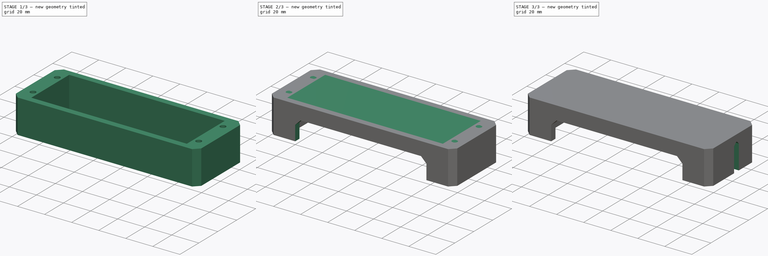
[diagram: build sequence overview — one tinted view per stage of 3, left to right]
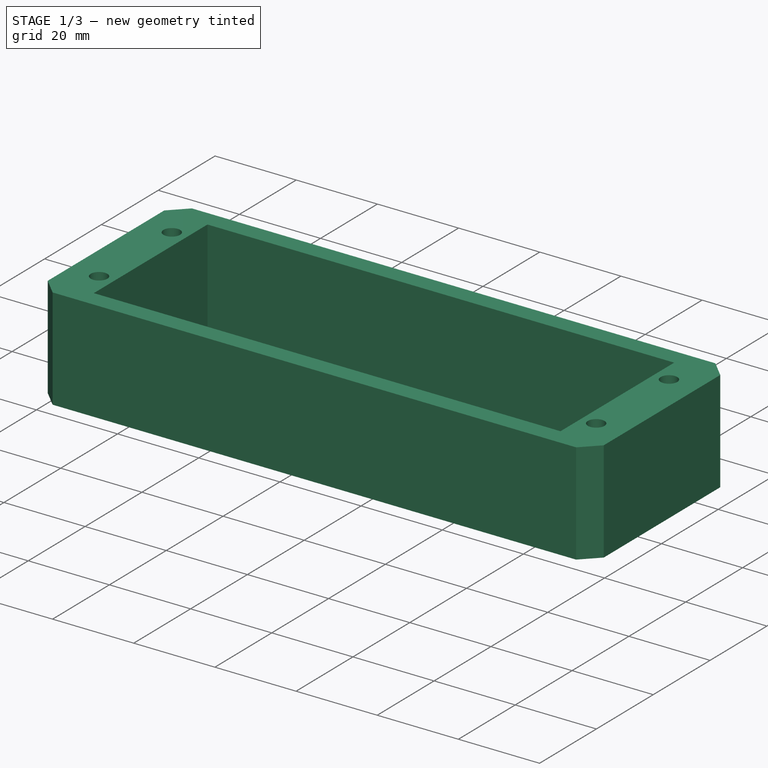
[diagram: stage 1 of 3 — iso view after this stage's code; geometry added in this stage tinted green]
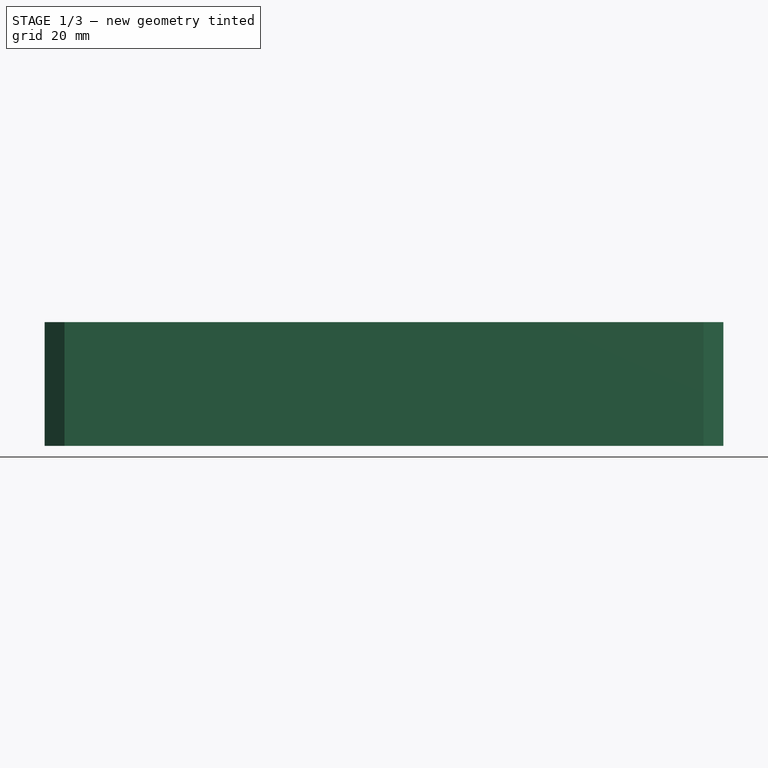
[diagram: stage 1 of 3 — front view after this stage's code; geometry added in this stage tinted green]
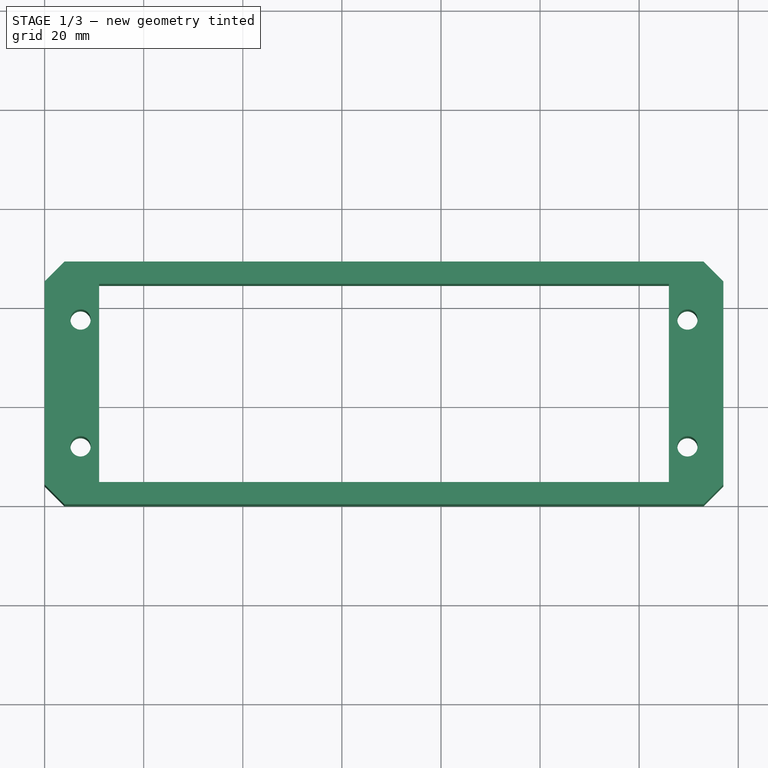
[diagram: stage 1 of 3 — top view after this stage's code; geometry added in this stage tinted green]
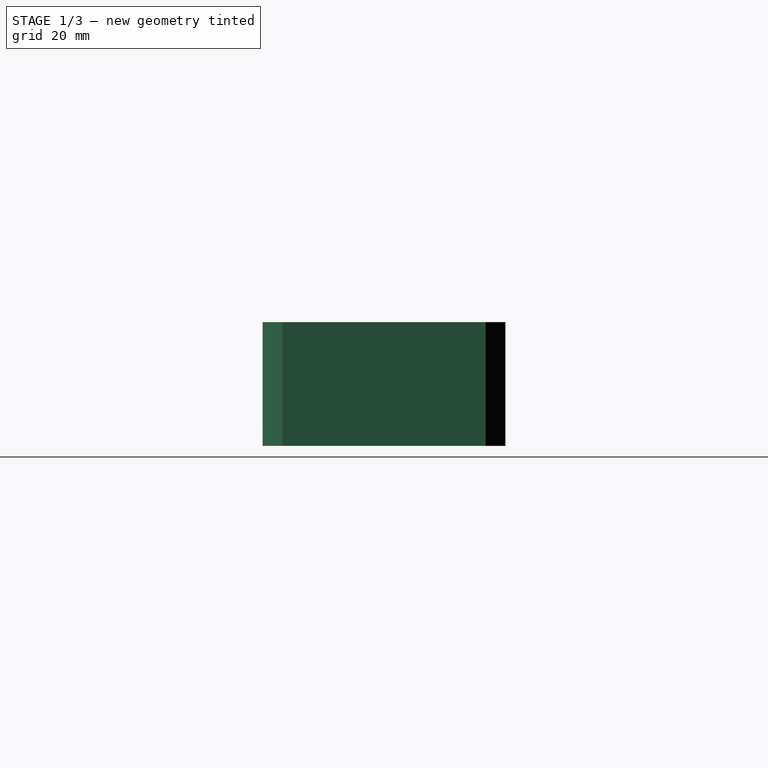
[diagram: stage 1 of 3 — right view after this stage's code; geometry added in this stage tinted green]
FCSTD DOCUMENT  (FreeCAD 0.20R29410 (Git))
Label: backup-modular-ii-cablecage
License: All rights reserved
LicenseURL: http://en.wikipedia.org/wiki/All_rights_reserved
objects: Sketcher::SketchObject×5, PartDesign::Pocket×3, PartDesign::Pad×2, PartDesign::Chamfer×2, PartDesign::Plane×1, PartDesign::Body×1
note: 21 computed .brp shape members not serialized (recipe doc carries the construction recipe); baked Part::Feature solids carry a one-line shape summary decoded from their .brp

FEATURE [Sketcher::SketchObject] Sketch
  FullyConstrained = true
  MapMode = 5
  Support = -> [XY_Plane]
  sketch-geometry (23):
    g0: LineSegment StartX=4 StartY=4 StartZ=0 EndX=133 EndY=4 EndZ=0
    g1: LineSegment StartX=133 StartY=4 StartZ=0 EndX=133 EndY=45 EndZ=0
    g2: LineSegment StartX=133 StartY=45 StartZ=0 EndX=4 EndY=45 EndZ=0
    g3: LineSegment StartX=4 StartY=45 StartZ=0 EndX=4 EndY=4 EndZ=0
    g4: LineSegment StartX=0 StartY=0 StartZ=0 EndX=137 EndY=0 EndZ=0
    g5: LineSegment StartX=137 StartY=0 StartZ=0 EndX=137 EndY=49 EndZ=0
    g6: LineSegment StartX=137 StartY=49 StartZ=0 EndX=0 EndY=49 EndZ=0
    g7: LineSegment StartX=0 StartY=49 StartZ=0 EndX=0 EndY=0 EndZ=0
    g8: LineSegment StartX=7.25 StartY=45 StartZ=0 EndX=7.25 EndY=4 EndZ=0
    g9: LineSegment StartX=129.75 StartY=4 StartZ=0 EndX=129.75 EndY=45 EndZ=0
    g10: Circle CenterX=7.25 CenterY=11.7 CenterZ=0 NormalX=0 NormalY=0 NormalZ=1 AngleXU=0 Radius=2.05
    g11: Circle CenterX=129.75 CenterY=11.7 CenterZ=0 NormalX=0 NormalY=0 NormalZ=1 AngleXU=0 Radius=2.05
    g12: Circle CenterX=7.25 CenterY=32.02 CenterZ=0 NormalX=0 NormalY=0 NormalZ=1 AngleXU=0 Radius=2.05
    g13: Circle CenterX=129.75 CenterY=32.02 CenterZ=0 NormalX=0 NormalY=0 NormalZ=1 AngleXU=0 Radius=2.05
    g14: Circle CenterX=7.25 CenterY=37.3 CenterZ=0 NormalX=0 NormalY=0 NormalZ=1 AngleXU=0 Radius=2.05
    g15: Circle CenterX=129.75 CenterY=37.3 CenterZ=0 NormalX=0 NormalY=0 NormalZ=1 AngleXU=0 Radius=2.05
    g16: LineSegment StartX=11 StartY=44.5 StartZ=0 EndX=126 EndY=44.5 EndZ=0
    g17: LineSegment StartX=126 StartY=44.5 StartZ=0 EndX=126 EndY=4.5 EndZ=0
    g18: LineSegment StartX=126 StartY=4.5 StartZ=0 EndX=11 EndY=4.5 EndZ=0
    g19: LineSegment StartX=11 StartY=4.5 StartZ=0 EndX=11 EndY=44.5 EndZ=0
    g20: LineSegment StartX=7.25 StartY=11.7 StartZ=0 EndX=129.75 EndY=11.7 EndZ=0
    g21: LineSegment StartX=7.25 StartY=32.02 StartZ=0 EndX=129.75 EndY=32.02 EndZ=0
    g22: LineSegment StartX=129.75 StartY=37.3 StartZ=0 EndX=7.25 EndY=37.3 EndZ=0
  constraints (67):
    c: Coincident(g0,g1)
    c: Coincident(g1,g2)
    c: Coincident(g2,g3)
    c: Coincident(g3,g0)
    c: Horizontal(g0)
    c: Horizontal(g2)
    c: Vertical(g1)
    c: Vertical(g3)
    c: Distance(g0) = 129
    c: Distance(g3) = 41
    c: DistanceX(g0) = 4
    c: DistanceY(g0) = 4
    c: Coincident(g4,g5)
    c: Coincident(g5,g6)
    c: Coincident(g6,g7)
    c: Coincident(g7,g4)
    c: Horizontal(g4)
    c: Horizontal(g6)
    c: Vertical(g5)
    c: Vertical(g7)
    c: Coincident(g4,g-1)
    c: Distance(g0,g5) = 4
    c: Distance(g2,g6) = 4
    c: PointOnObject(g8,g2)
    c: PointOnObject(g8,g0)
    c: Vertical(g8)
    c: PointOnObject(g9,g0)
    c: Vertical(g9)
    c: PointOnObject(g9,g2)
    c: Distance(g9,g1) = 3.25
    c: Distance(g8,g3) = 3.25
    c: PointOnObject(g10,g8)
    c: PointOnObject(g11,g9)
    c: PointOnObject(g12,g8)
    c: PointOnObject(g13,g9)
    c: PointOnObject(g14,g8)
    c: PointOnObject(g15,g9)
    c: Equal(g10,g12)
    c: Equal(g12,g14)
    c: Equal(g14,g11)
    c: Equal(g11,g13)
    c: Equal(g13,g15)
    c: Coincident(g16,g17)
    c: Coincident(g17,g18)
    c: Coincident(g18,g19)
    c: Coincident(g19,g16)
    c: Horizontal(g16)
    c: Horizontal(g18)
    c: Vertical(g17)
    c: Vertical(g19)
    c: Distance(g16,g2) = 0.5
    c: Distance(g18,g0) = 0.5
    c: Distance(g16,g3) = 7
    c: Distance(g16,g1) = 7
    c: Distance(g10,g0) = 7.7
    c: Coincident(g20,g10)
    c: Coincident(g20,g11)
    c: Horizontal(g20)
    c: Diameter(g10) = 4.1
    c: Coincident(g21,g12)
    c: Coincident(g21,g13)
    c: Horizontal(g21)
    c: Coincident(g22,g15)
    c: Coincident(g22,g14)
    c: Horizontal(g22)
    c: Distance(g12,g20) = 20.32
    c: Distance(g14,g2) = 7.7
FEATURE [PartDesign::Pad] Pad
  Direction = (0,0,1)
  Length = 25
  Length2 = 10
  Profile = -> Sketch
  ReferenceAxis = -> Sketch [N_Axis]
  Reversed = true
  Type = 0
FEATURE [Sketcher::SketchObject] Sketch002
  FullyConstrained = false
  MapMode = 5
  Placement = pos=(0,0,0) rot=(1,0,0;1.5708rad)
  Support = -> [XZ_Plane]
  sketch-geometry (13):
    g0: LineSegment StartX=20 StartY=0 StartZ=0 EndX=117 EndY=0 EndZ=0
    g1: LineSegment StartX=24 StartY=-10 StartZ=0 EndX=20 EndY=-10 EndZ=0
    g2: LineSegment StartX=20 StartY=-10 StartZ=0 EndX=20 EndY=-14 EndZ=0
    g3: LineSegment StartX=20 StartY=-14 StartZ=0 EndX=20 EndY=0 EndZ=0
    g4: LineSegment StartX=117 StartY=-10 StartZ=0 EndX=113 EndY=-10 EndZ=0
    g5: LineSegment StartX=113 StartY=-10 StartZ=0 EndX=24 EndY=-10 EndZ=0
    g6: LineSegment StartX=117 StartY=0 StartZ=0 EndX=117 EndY=-14 EndZ=0
    g7: LineSegment StartX=117 StartY=-14 StartZ=0 EndX=117 EndY=-10 EndZ=0
    g8: LineSegment StartX=20 StartY=-14 StartZ=0 EndX=24 EndY=-10 EndZ=0
    g9: LineSegment StartX=113 StartY=-10 StartZ=0 EndX=117 EndY=-14 EndZ=0
    g10: LineSegment StartX=20 StartY=-147.796 StartZ=0 EndX=117 EndY=-147.796 EndZ=0
    g11: LineSegment StartX=20 StartY=-14 StartZ=0 EndX=20 EndY=-147.796 EndZ=0
    g12: LineSegment StartX=117 StartY=-14 StartZ=0 EndX=117 EndY=-147.796 EndZ=0
  constraints (35):
    c: Coincident(g0,g6)
    c: Coincident(g7,g4)
    c: Coincident(g1,g2)
    c: Coincident(g3,g0)
    c: Horizontal(g0)
    c: PointOnObject(g0,g-1)
    c: Distance(g0) = 97
    c: Coincident(g5,g1)
    c: Horizontal(g1)
    c: Coincident(g2,g3)
    c: Vertical(g2)
    c: Vertical(g3)
    c: Distance(g-1,g3) = 20
    c: Coincident(g4,g5)
    c: Horizontal(g4)
    c: Horizontal(g5)
    c: Coincident(g6,g7)
    c: Vertical(g6)
    c: Vertical(g7)
    c: Coincident(g8,g3)
    c: Coincident(g8,g5)
    c: Coincident(g9,g5)
    c: Coincident(g9,g6)
    c: Horizontal(g10)
    c: Equal(g7,g4)
    c: Equal(g2,g1)
    c: Equal(g1,g4)
    c: Distance(g1) = 4
    c: Coincident(g11,g8)
    c: Coincident(g11,g10)
    c: Coincident(g12,g9)
    c: Coincident(g12,g10)
    c: Vertical(g12)
    c: Vertical(g11)
    c: DistanceY(g-1,g5) = -10
FEATURE [PartDesign::Chamfer] Chamfer
  Angle = 45
  Base = -> Pad [Edge5,Edge2,Edge8,Edge1]
  BaseFeature = -> Pad
  ChamferType = 0
  FlipDirection = false
  Size = 4
  Size2 = 1
  SupportTransform = false
  UseAllEdges = false
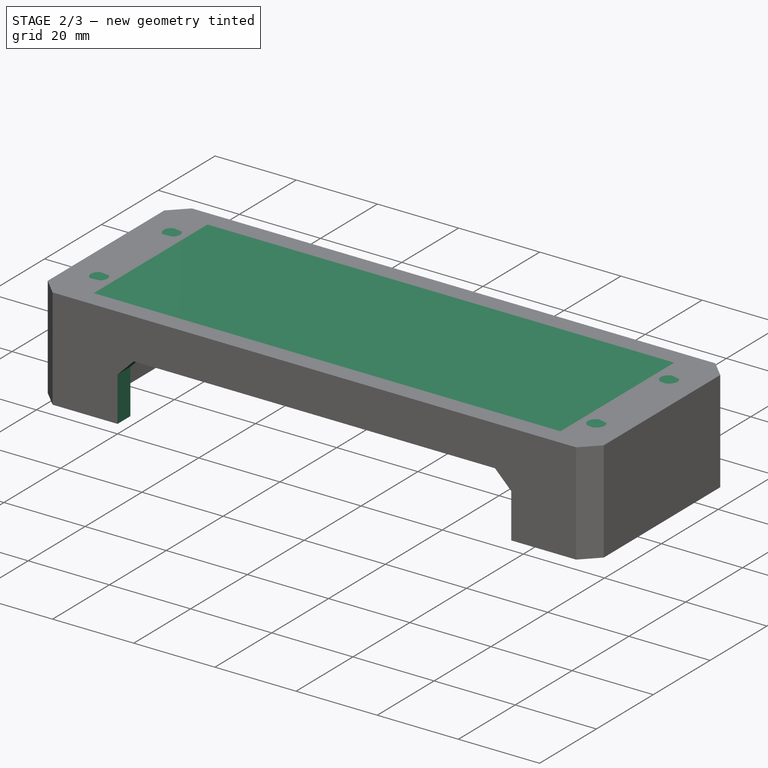
[diagram: stage 2 of 3 — iso view after this stage's code; geometry added in this stage tinted green]
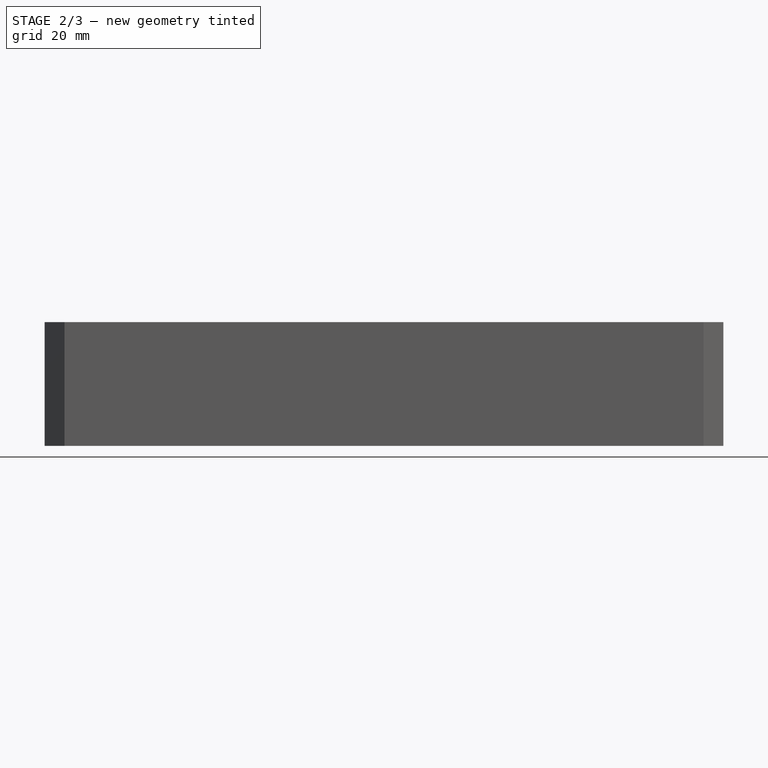
[diagram: stage 2 of 3 — front view after this stage's code; geometry added in this stage tinted green]
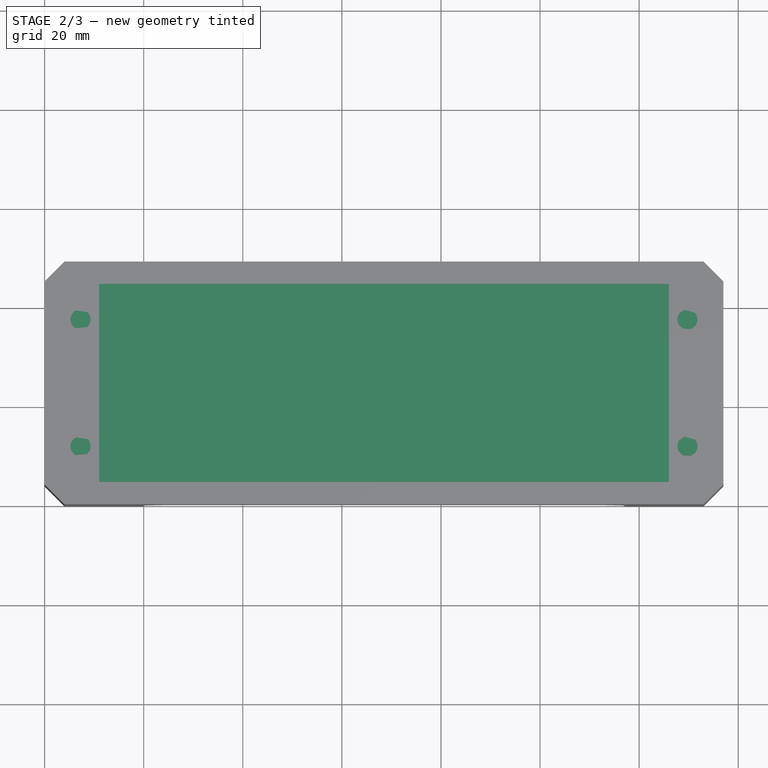
[diagram: stage 2 of 3 — top view after this stage's code; geometry added in this stage tinted green]
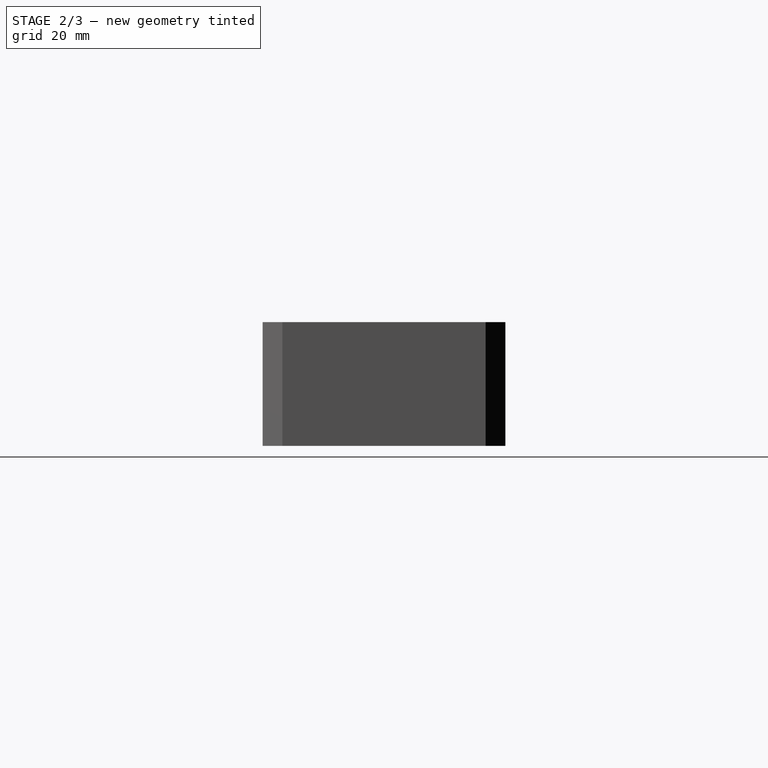
[diagram: stage 2 of 3 — right view after this stage's code; geometry added in this stage tinted green]
FEATURE [PartDesign::Plane] DatumPlane
  AttachmentOffset = pos=(0,0,-20) rot=(0,0,1;0rad)
  Length = 183.898
  MapMode = 5
  Placement = pos=(0,0,-20) rot=(0,0,1;0rad)
  ResizeMode = 0
  Support = -> [XY_Plane]
  Width = 95.8979
FEATURE [Sketcher::SketchObject] Sketch003
  FullyConstrained = true
  MapMode = 5
  Placement = pos=(0,0,-20) rot=(0,0,1;0rad)
  Support = -> [DatumPlane]
  sketch-geometry (24):
    g0: LineSegment StartX=3.475 StartY=17 StartZ=0 EndX=11.025 EndY=17 EndZ=0
    g1: LineSegment StartX=11.025 StartY=17 StartZ=0 EndX=11.025 EndY=6.5 EndZ=0
    g2: LineSegment StartX=11.025 StartY=6.5 StartZ=0 EndX=3.475 EndY=6.5 EndZ=0
    g3: LineSegment StartX=3.475 StartY=6.5 StartZ=0 EndX=3.475 EndY=17 EndZ=0
    g4: LineSegment StartX=3.475 StartY=42.5 StartZ=0 EndX=11.025 EndY=42.5 EndZ=0
    g5: LineSegment StartX=11.025 StartY=42.5 StartZ=0 EndX=11.025 EndY=32 EndZ=0
    g6: LineSegment StartX=11.025 StartY=32 StartZ=0 EndX=3.475 EndY=32 EndZ=0
    g7: LineSegment StartX=3.475 StartY=32 StartZ=0 EndX=3.475 EndY=42.5 EndZ=0
    g8: LineSegment StartX=125.975 StartY=42.5 StartZ=0 EndX=133.525 EndY=42.5 EndZ=0
    g9: LineSegment StartX=133.525 StartY=42.5 StartZ=0 EndX=133.525 EndY=32 EndZ=0
    g10: LineSegment StartX=133.525 StartY=32 StartZ=0 EndX=125.975 EndY=32 EndZ=0
    g11: LineSegment StartX=125.975 StartY=32 StartZ=0 EndX=125.975 EndY=42.5 EndZ=0
    g12: LineSegment StartX=125.975 StartY=17 StartZ=0 EndX=133.525 EndY=17 EndZ=0
    g13: LineSegment StartX=133.525 StartY=17 StartZ=0 EndX=133.525 EndY=6.5 EndZ=0
    g14: LineSegment StartX=133.525 StartY=6.5 StartZ=0 EndX=125.975 EndY=6.5 EndZ=0
    g15: LineSegment StartX=125.975 StartY=6.5 StartZ=0 EndX=125.975 EndY=17 EndZ=0
    g16: GeomPoint X=7.25 Y=37.25 Z=0
    g17: GeomPoint X=7.25 Y=11.75 Z=0
    g18: GeomPoint X=129.75 Y=11.75 Z=0
    g19: GeomPoint X=129.75 Y=37.25 Z=0
    g20: LineSegment StartX=7.25 StartY=11.75 StartZ=0 EndX=129.75 EndY=11.75 EndZ=0
    g21: LineSegment StartX=129.75 StartY=11.75 StartZ=0 EndX=129.75 EndY=37.25 EndZ=0
    g22: LineSegment StartX=129.75 StartY=37.25 StartZ=0 EndX=7.25 EndY=37.25 EndZ=0
    g23: LineSegment StartX=7.25 StartY=37.25 StartZ=0 EndX=7.25 EndY=11.75 EndZ=0
  constraints (60):
    c: Coincident(g0,g1)
    c: Coincident(g1,g2)
    c: Coincident(g2,g3)
    c: Coincident(g3,g0)
    c: Horizontal(g0)
    c: Horizontal(g2)
    c: Vertical(g1)
    c: Vertical(g3)
    c: Coincident(g4,g5)
    c: Coincident(g5,g6)
    c: Coincident(g6,g7)
    c: Coincident(g7,g4)
    c: Horizontal(g4)
    c: Horizontal(g6)
    c: Vertical(g5)
    c: Vertical(g7)
    c: Coincident(g8,g9)
    c: Coincident(g9,g10)
    c: Coincident(g10,g11)
    c: Coincident(g11,g8)
    c: Horizontal(g8)
    c: Horizontal(g10)
    c: Vertical(g9)
    c: Vertical(g11)
    c: Coincident(g12,g13)
    c: Coincident(g13,g14)
    c: Coincident(g14,g15)
    c: Coincident(g15,g12)
    c: Horizontal(g12)
    c: Horizontal(g14)
    c: Vertical(g13)
    c: Vertical(g15)
    c: Equal(g13,g9)
    c: Equal(g9,g5)
    c: Equal(g5,g1)
    c: Equal(g12,g10)
    c: Equal(g10,g6)
    c: Equal(g6,g0)
    c: Symmetric(g4,g5,g16)
    c: Symmetric(g0,g1,g17)
    c: Symmetric(g14,g12,g18)
    c: Symmetric(g10,g8,g19)
    c: Coincident(g20,g21)
    c: Coincident(g21,g22)
    c: Coincident(g22,g23)
    c: Coincident(g23,g20)
    c: Horizontal(g20)
    c: Horizontal(g22)
    c: Vertical(g21)
    c: Vertical(g23)
    c: Coincident(g20,g17)
    c: Coincident(g21,g19)
    c: Coincident(g18,g20)
    c: Coincident(g22,g16)
    c: DistanceX(g17) = 7.25
    c: DistanceY(g17) = 11.75
    c: DistanceX(g19) = 129.75
    c: DistanceY(g19) = 37.25
    c: Distance(g10) = 7.55
    c: Distance(g11) = 10.5
FEATURE [Sketcher::SketchObject] Sketch004
  FullyConstrained = true
  MapMode = 5
  Support = -> [XY_Plane]
  sketch-geometry (4):
    g0: LineSegment StartX=4 StartY=4 StartZ=0 EndX=133 EndY=4 EndZ=0
    g1: LineSegment StartX=133 StartY=4 StartZ=0 EndX=133 EndY=45 EndZ=0
    g2: LineSegment StartX=133 StartY=45 StartZ=0 EndX=4 EndY=45 EndZ=0
    g3: LineSegment StartX=4 StartY=45 StartZ=0 EndX=4 EndY=4 EndZ=0
  constraints (12):
    c: Coincident(g0,g1)
    c: Coincident(g1,g2)
    c: Coincident(g2,g3)
    c: Coincident(g3,g0)
    c: Horizontal(g0)
    c: Horizontal(g2)
    c: Vertical(g1)
    c: Vertical(g3)
    c: DistanceX(g0) = 4
    c: DistanceY(g0) = 4
    c: DistanceX(g1) = 133
    c: DistanceY(g1) = 45
FEATURE [PartDesign::Pad] Pad001
  BaseFeature = -> Chamfer
  Direction = (0,0,1)
  Length = 4
  Length2 = 10
  Profile = -> Sketch004
  ReferenceAxis = -> Sketch004 [N_Axis]
  Reversed = true
  Type = 0
FEATURE [PartDesign::Pocket] Pocket
  BaseFeature = -> Pad001
  Direction = (0,0,-1)
  Length = 4
  Length2 = 5
  Profile = -> Sketch003
  ReferenceAxis = -> Sketch003 [N_Axis]
  Reversed = true
  Type = 0
FEATURE [PartDesign::Pocket] Pocket001
  BaseFeature = -> Pocket
  Direction = (0,1,2e-16)
  Length = 5.01
  Length2 = 5
  Profile = -> Sketch002
  ReferenceAxis = -> Sketch002 [N_Axis]
  Type = 0
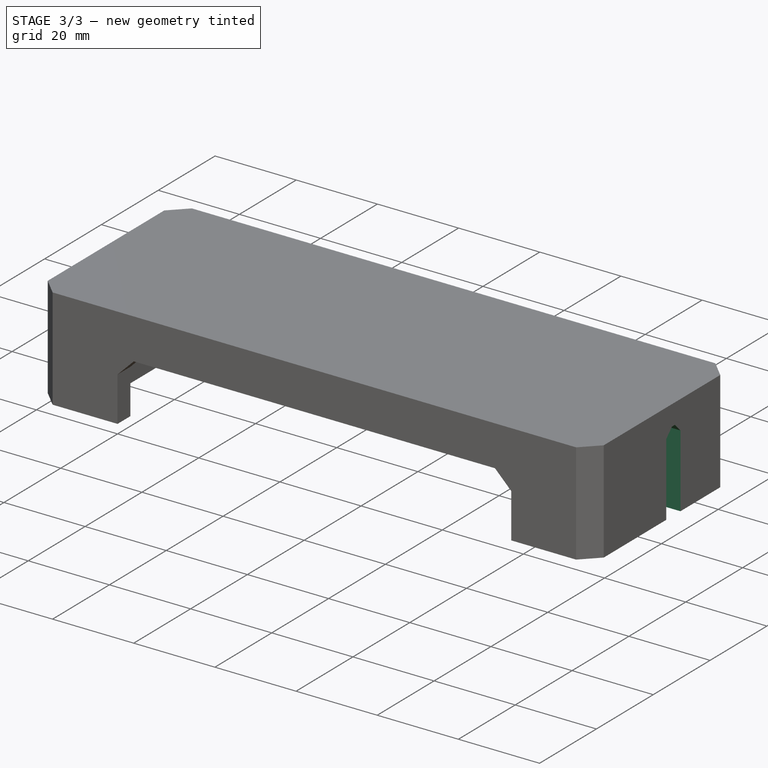
[diagram: stage 3 of 3 — iso view after this stage's code; geometry added in this stage tinted green]
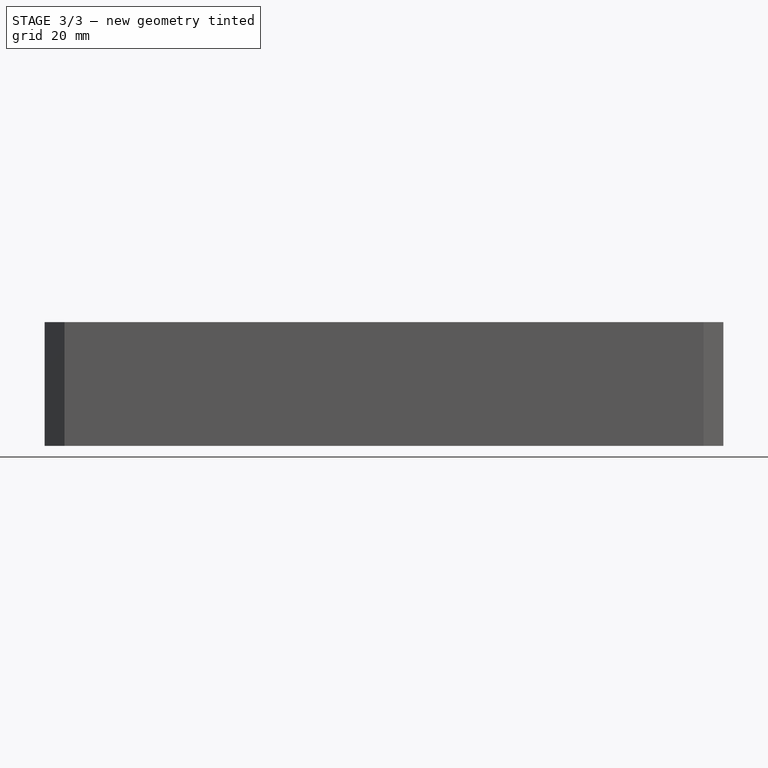
[diagram: stage 3 of 3 — front view after this stage's code; geometry added in this stage tinted green]
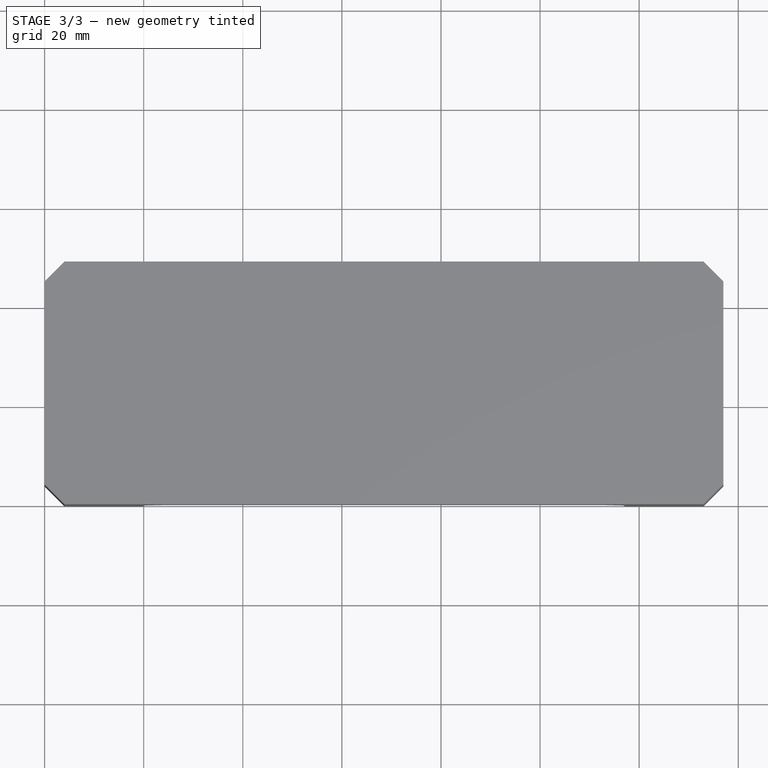
[diagram: stage 3 of 3 — top view after this stage's code; geometry added in this stage tinted green]
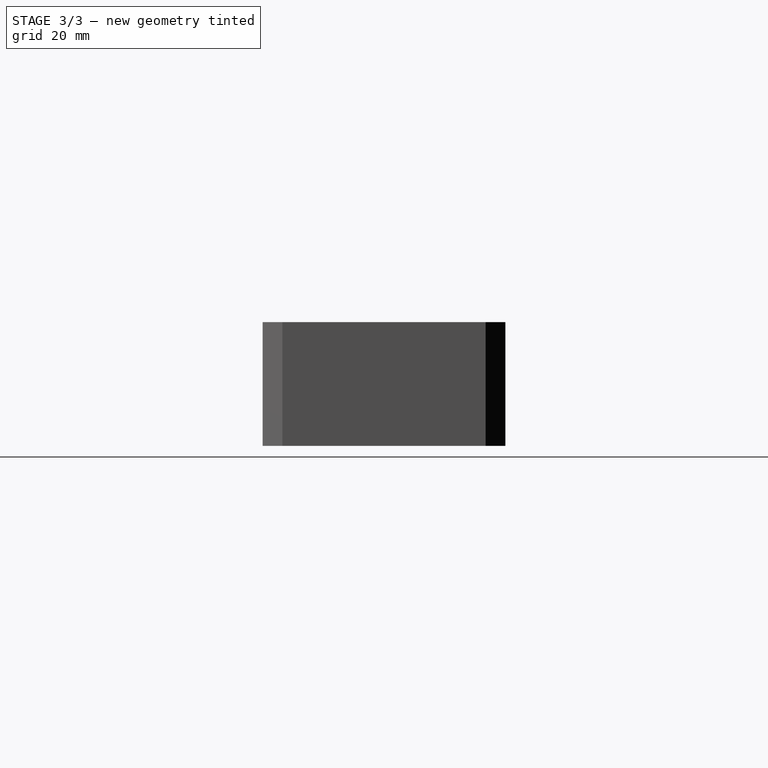
[diagram: stage 3 of 3 — right view after this stage's code; geometry added in this stage tinted green]
FEATURE [Sketcher::SketchObject] Sketch005
  FullyConstrained = false
  MapMode = 5
  Placement = pos=(0,0,-20) rot=(0,0,1;0rad)
  Support = -> [DatumPlane]
  sketch-geometry (4):
    g0: LineSegment StartX=120.124 StartY=31 StartZ=0 EndX=142.257 EndY=31 EndZ=0
    g1: LineSegment StartX=142.257 StartY=31 StartZ=0 EndX=142.257 EndY=26 EndZ=0
    g2: LineSegment StartX=142.257 StartY=26 StartZ=0 EndX=120.124 EndY=26 EndZ=0
    g3: LineSegment StartX=120.124 StartY=26 StartZ=0 EndX=120.124 EndY=31 EndZ=0
  constraints (10):
    c: Coincident(g0,g1)
    c: Coincident(g1,g2)
    c: Coincident(g2,g3)
    c: Coincident(g3,g0)
    c: Horizontal(g0)
    c: Horizontal(g2)
    c: Vertical(g1)
    c: Vertical(g3)
    c: Distance(g3) = 5
    c: DistanceY(g-1,g2) = 26
FEATURE [PartDesign::Pocket] Pocket002
  BaseFeature = -> Pocket001
  Direction = (0,0,-1)
  Length = 30
  Length2 = 5
  Midplane = true
  Profile = -> Sketch005
  ReferenceAxis = -> Sketch005 [N_Axis]
  Type = 0
FEATURE [PartDesign::Chamfer] Chamfer001
  Angle = 45
  Base = -> Pocket002 [Edge86,Edge89]
  BaseFeature = -> Pocket002
  ChamferType = 0
  FlipDirection = false
  Size = 2
  Size2 = 1
  SupportTransform = false
  UseAllEdges = false
FEATURE [PartDesign::Body] Body
  Group = -> [DatumPlane,Sketch,Pad,Chamfer,Pad001,Sketch003,Sketch002,Sketch004,Pocket,Pocket001,Sketch005,Pocket002,Chamfer001]
  Origin = -> Origin
  Tip = -> Chamfer001
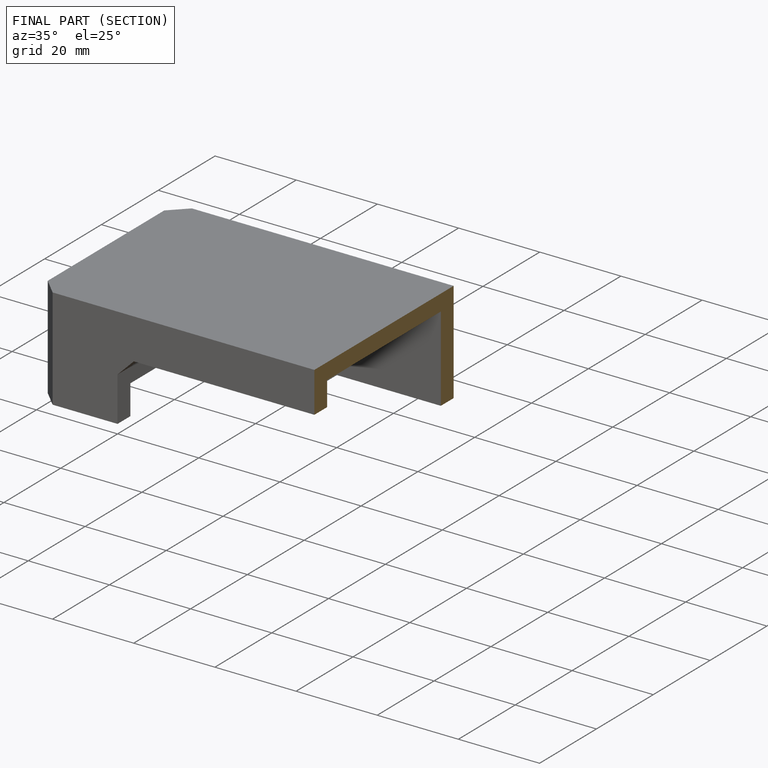
[diagram: finished part — half-section view (interior)]
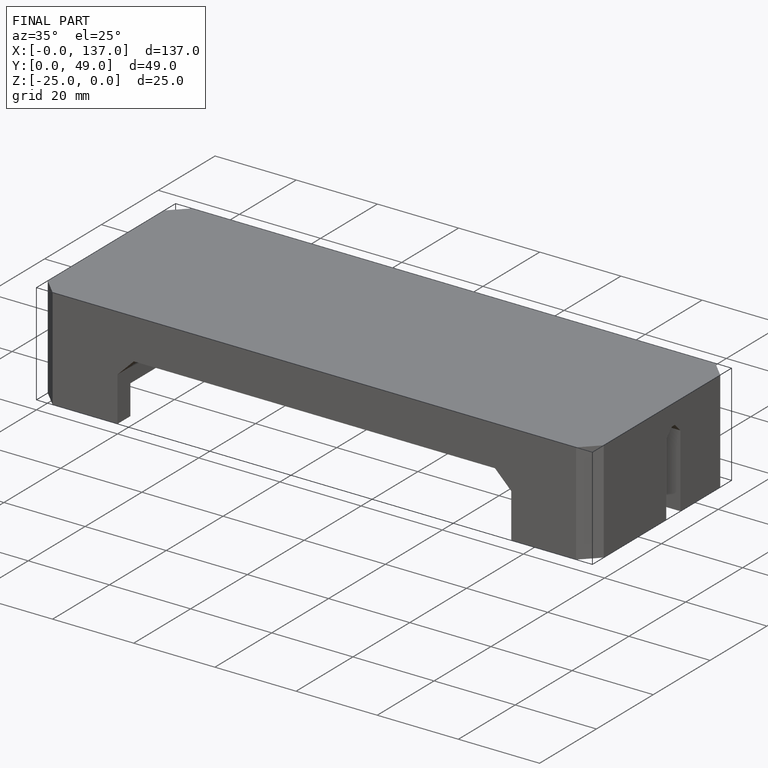
[diagram: finished part — iso view with bounding-box wireframe]
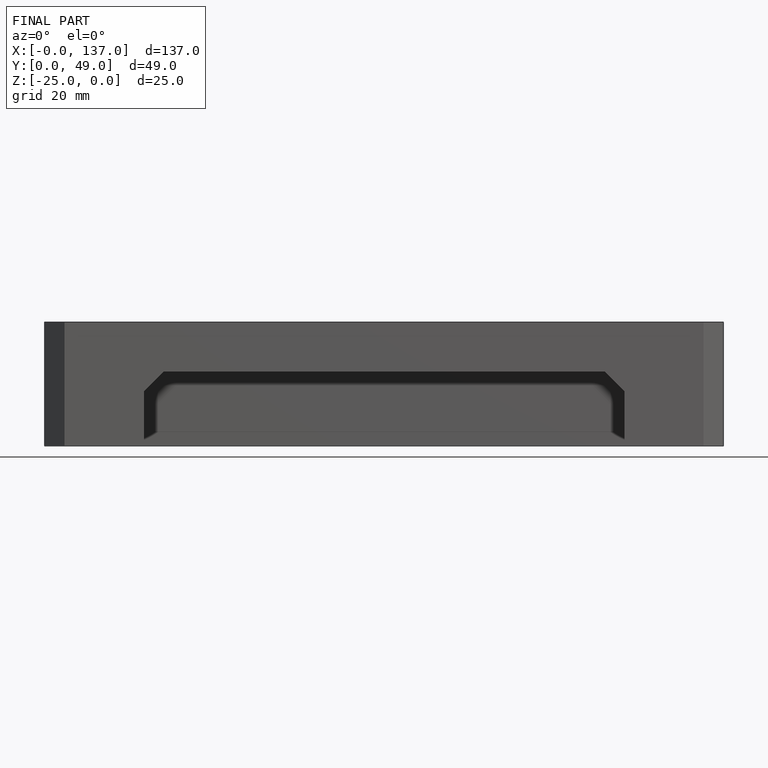
[diagram: finished part — front view with bounding-box wireframe]
